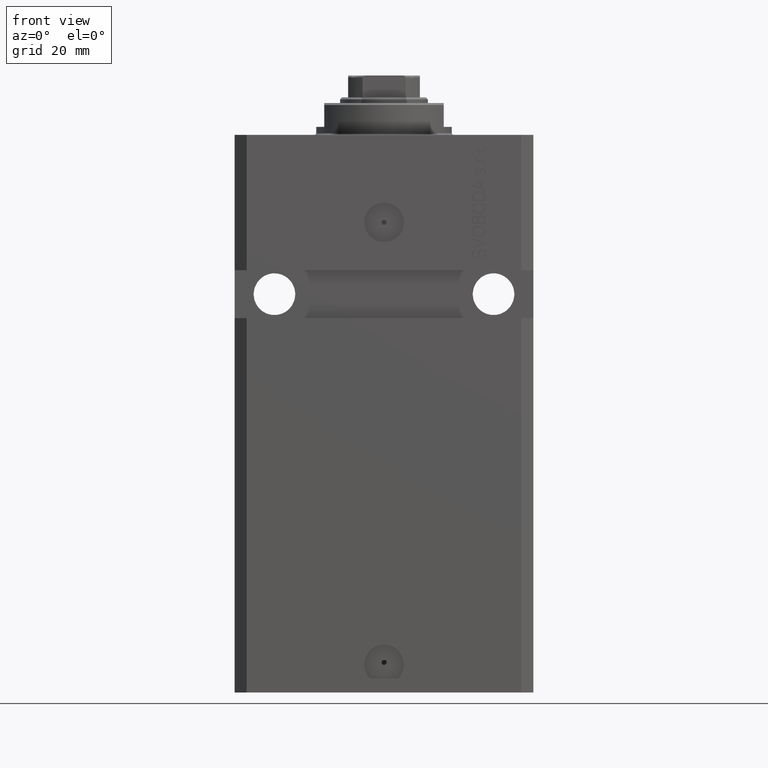
[diagram: clean part render]
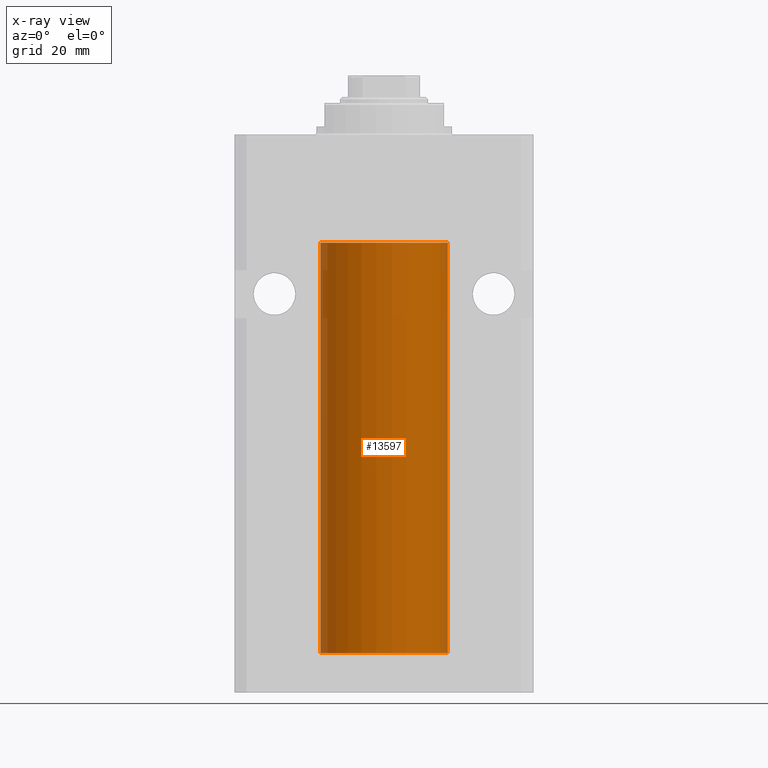
[diagram: x-ray — body ghosted, one internal face saturated and labeled with its STEP entity id]
A machine part, front view, then the same camera in x-ray: the body is ghosted and one INTERNAL B-rep face — a face not visible from any outside direction — is saturated and labeled: STEP entity #13597.
In plain terms, the highlighted cylindrical surface (partial cylindrical patch) has radius 16 mm, axis along (0, 0, 1).
Its self-contained STEP definition (entity closure, byte-faithful):
#216 = VECTOR ( 'NONE', #12793, 1000.000000000000000 ) ;
#425 = CARTESIAN_POINT ( 'NONE',  ( 16.00000000000000000, 0.000000000000000000, -130.0999999999999943 ) ) ;
#524 = CARTESIAN_POINT ( 'NONE',  ( -16.00000000000000000, 1.959434878635765131E-15, -130.0999999999999943 ) ) ;
#607 = DIRECTION ( 'NONE',  ( 1.000000000000000000, 0.000000000000000000, 0.000000000000000000 ) ) ;
#1254 = VERTEX_POINT ( 'NONE', #34045 ) ;
#1935 = CARTESIAN_POINT ( 'NONE',  ( 0.000000000000000000, 0.000000000000000000, -130.0999999999999943 ) ) ;
#2227 = CARTESIAN_POINT ( 'NONE',  ( 15.98778830858102040, -0.6250000000001159073, -128.1648119328233690 ) ) ;
#2923 = CARTESIAN_POINT ( 'NONE',  ( 16.00000000000000000, 2.199125140786256469E-15, -128.6250000000000284 ) ) ;
#3739 = CARTESIAN_POINT ( 'NONE',  ( -15.98778295664474491, -0.6251369050462284305, -127.8356432545786561 ) ) ;
#4026 = ORIENTED_EDGE ( 'NONE', *, *, #39373, .F. ) ;
#4138 = CIRCLE ( 'NONE', #40114, 16.00000000000000000 ) ;
#5053 = DIRECTION ( 'NONE',  ( 1.000000000000000000, 0.000000000000000000, 0.000000000000000000 ) ) ;
#5696 = EDGE_CURVE ( 'NONE', #25244, #1254, #19738, .T. ) ;
#6155 = DIRECTION ( 'NONE',  ( -0.000000000000000000, -0.000000000000000000, 1.000000000000000000 ) ) ;
#6204 = CARTESIAN_POINT ( 'NONE',  ( 16.00000000000000000, 0.000000000000000000, -130.0999999999999943 ) ) ;
#7364 = VERTEX_POINT ( 'NONE', #6204 ) ;
#7545 = DIRECTION ( 'NONE',  ( 0.000000000000000000, 0.000000000000000000, 1.000000000000000000 ) ) ;
#8274 = VECTOR ( 'NONE', #6155, 1000.000000000000000 ) ;
#8775 = ORIENTED_EDGE ( 'NONE', *, *, #12006, .F. ) ;
#10502 = EDGE_CURVE ( 'NONE', #17277, #13328, #16293, .T. ) ;
#10510 = ORIENTED_EDGE ( 'NONE', *, *, #46041, .T. ) ;
#10513 = DIRECTION ( 'NONE',  ( -0.000000000000000000, -0.000000000000000000, 1.000000000000000000 ) ) ;
#10705 = CARTESIAN_POINT ( 'NONE',  ( 15.99071289786271954, -0.5571474671814827806, -127.6731966548882440 ) ) ;
#12006 = EDGE_CURVE ( 'NONE', #25244, #7364, #4138, .T. ) ;
#12062 = DIRECTION ( 'NONE',  ( 0.000000000000000000, 0.000000000000000000, 1.000000000000000000 ) ) ;
#12793 = DIRECTION ( 'NONE',  ( -0.000000000000000000, -0.000000000000000000, 1.000000000000000000 ) ) ;
#13154 = VERTEX_POINT ( 'NONE', #20409 ) ;
#13328 = VERTEX_POINT ( 'NONE', #26369 ) ;
#13597 = ADVANCED_FACE ( 'NONE', ( #16305 ), #33816, .F. ) ;
#13689 = VECTOR ( 'NONE', #10513, 1000.000000000000000 ) ;
#14104 = AXIS2_PLACEMENT_3D ( 'NONE', #1935, #34757, #5053 ) ;
#14285 = CARTESIAN_POINT ( 'NONE',  ( -16.00000000000000000, -1.314639473218082033E-14, -127.3749999999999858 ) ) ;
#14554 = ORIENTED_EDGE ( 'NONE', *, *, #44456, .F. ) ;
#15035 = DIRECTION ( 'NONE',  ( -0.000000000000000000, -0.000000000000000000, 1.000000000000000000 ) ) ;
#15404 = CARTESIAN_POINT ( 'NONE',  ( 0.000000000000000000, 0.000000000000000000, -27.10000000000000142 ) ) ;
#16123 = VERTEX_POINT ( 'NONE', #25306 ) ;
#16293 = CIRCLE ( 'NONE', #42348, 16.00000000000000000 ) ;
#16305 = FACE_OUTER_BOUND ( 'NONE', #39926, .T. ) ;
#16499 = CARTESIAN_POINT ( 'NONE',  ( 15.98778830858101685, -0.6250000000001232348, -128.0000000000000000 ) ) ;
#17277 = VERTEX_POINT ( 'NONE', #46894 ) ;
#17877 = CARTESIAN_POINT ( 'NONE',  ( -16.00000000000000000, -0.1651602165840369285, -127.3749999999999858 ) ) ;
#19738 = LINE ( 'NONE', #45602, #216 ) ;
#20278 = CARTESIAN_POINT ( 'NONE',  ( -16.00000000000000000, -1.314639473218082033E-14, -127.3749999999999858 ) ) ;
#20409 = CARTESIAN_POINT ( 'NONE',  ( 16.00000000000013145, 3.665533114689029904E-13, -127.3749999999965752 ) ) ;
#21120 = CARTESIAN_POINT ( 'NONE',  ( 15.99707785788560521, -0.3267997233067349017, -128.5571521527664345 ) ) ;
#21475 = CARTESIAN_POINT ( 'NONE',  ( 15.98778830858102040, -0.6250000000001306732, -127.8350147931928689 ) ) ;
#24050 = B_SPLINE_CURVE_WITH_KNOTS ( 'NONE', 3,
 ( #32282, #28436, #28900, #36821, #39470, #3739, #28662, #43981, #17877, #14285 ),
 .UNSPECIFIED., .F., .F.,
 ( 4, 2, 2, 2, 4 ),
 ( 0.001954221322144799027, 0.002442665739568306450, 0.002931110156991814306, 0.003419554574415321728, 0.003907998991838829150 ),
 .UNSPECIFIED. ) ;
#24492 = CARTESIAN_POINT ( 'NONE',  ( 16.00000000000000000, -0.1650734421240379612, -128.6250000000000568 ) ) ;
#24841 = CARTESIAN_POINT ( 'NONE',  ( 15.98778830858101685, -0.6250000000001232348, -128.0000000000000000 ) ) ;
#25244 = VERTEX_POINT ( 'NONE', #524 ) ;
#25306 = CARTESIAN_POINT ( 'NONE',  ( 16.00000000000000000, 2.199125140786256469E-15, -128.6250000000000284 ) ) ;
#26369 = CARTESIAN_POINT ( 'NONE',  ( 16.00000000000000000, 0.000000000000000000, -27.10000000000000142 ) ) ;
#26558 = EDGE_CURVE ( 'NONE', #34281, #17277, #43336, .T. ) ;
#27852 = ORIENTED_EDGE ( 'NONE', *, *, #45351, .T. ) ;
#28436 = CARTESIAN_POINT ( 'NONE',  ( -16.00000000000000711, -0.1631344205875858155, -128.6250000000001705 ) ) ;
#28662 = CARTESIAN_POINT ( 'NONE',  ( -15.99069874693027948, -0.5575440858643410103, -127.6738242501145066 ) ) ;
#28900 = CARTESIAN_POINT ( 'NONE',  ( -15.99708815688950381, -0.3263115027448994510, -128.5574096919822580 ) ) ;
#28955 = CARTESIAN_POINT ( 'NONE',  ( -16.00000000000000000, 1.959434878635765131E-15, -130.0999999999999943 ) ) ;
#29746 = VECTOR ( 'NONE', #15035, 1000.000000000000000 ) ;
#31407 = ORIENTED_EDGE ( 'NONE', *, *, #5696, .T. ) ;
#31459 = ORIENTED_EDGE ( 'NONE', *, *, #10502, .T. ) ;
#31803 = CARTESIAN_POINT ( 'NONE',  ( 16.00000000000000000, 0.000000000000000000, -130.0999999999999943 ) ) ;
#32282 = CARTESIAN_POINT ( 'NONE',  ( -16.00000000000013145, 3.685127464164956467E-13, -128.6250000000034390 ) ) ;
#32311 = VERTEX_POINT ( 'NONE', #16499 ) ;
#33080 = ORIENTED_EDGE ( 'NONE', *, *, #35055, .T. ) ;
#33256 = LINE ( 'NONE', #425, #29746 ) ;
#33816 = CYLINDRICAL_SURFACE ( 'NONE', #14104, 16.00000000000000000 ) ;
#34045 = CARTESIAN_POINT ( 'NONE',  ( -16.00000000000013145, 3.685127464164956467E-13, -128.6250000000034390 ) ) ;
#34281 = VERTEX_POINT ( 'NONE', #20278 ) ;
#34757 = DIRECTION ( 'NONE',  ( -0.000000000000000000, -0.000000000000000000, 1.000000000000000000 ) ) ;
#34952 = ORIENTED_EDGE ( 'NONE', *, *, #26558, .T. ) ;
#35055 = EDGE_CURVE ( 'NONE', #1254, #34281, #24050, .T. ) ;
#36821 = CARTESIAN_POINT ( 'NONE',  ( -15.99071965633095793, -0.5569502390237165423, -128.3270950821868439 ) ) ;
#37421 = B_SPLINE_CURVE_WITH_KNOTS ( 'NONE', 3,
 ( #39592, #2227, #39361, #21120, #24492, #2923 ),
 .UNSPECIFIED., .F., .F.,
 ( 4, 2, 4 ),
 ( 0.002931623410139905066, 0.003419811200989341087, 0.003907998991838777109 ),
 .UNSPECIFIED. ) ;
#39242 = LINE ( 'NONE', #31803, #8274 ) ;
#39361 = CARTESIAN_POINT ( 'NONE',  ( 15.99070553365076996, -0.5573460204199366386, -128.3264689786301176 ) ) ;
#39373 = EDGE_CURVE ( 'NONE', #13154, #13328, #39242, .T. ) ;
#39470 = CARTESIAN_POINT ( 'NONE',  ( -15.98779367741636648, -0.6248626626677442619, -128.1653963198503732 ) ) ;
#39475 = CARTESIAN_POINT ( 'NONE',  ( 16.00000000000013145, 3.665533114689029904E-13, -127.3749999999965752 ) ) ;
#39592 = CARTESIAN_POINT ( 'NONE',  ( 15.98778830858101685, -0.6250000000001232348, -128.0000000000000000 ) ) ;
#39926 = EDGE_LOOP ( 'NONE', ( #8775, #31407, #33080, #34952, #31459, #4026, #27852, #10510, #14554 ) ) ;
#40114 = AXIS2_PLACEMENT_3D ( 'NONE', #40398, #7545, #607 ) ;
#40398 = CARTESIAN_POINT ( 'NONE',  ( 0.000000000000000000, 0.000000000000000000, -130.0999999999999943 ) ) ;
#42348 = AXIS2_PLACEMENT_3D ( 'NONE', #15404, #12062, #44875 ) ;
#43336 = LINE ( 'NONE', #28955, #13689 ) ;
#43981 = CARTESIAN_POINT ( 'NONE',  ( -15.99707459521409625, -0.3269651631532018987, -127.4429184892856028 ) ) ;
#44456 = EDGE_CURVE ( 'NONE', #7364, #16123, #33256, .T. ) ;
#44875 = DIRECTION ( 'NONE',  ( 1.000000000000000000, 0.000000000000000000, 0.000000000000000000 ) ) ;
#45351 = EDGE_CURVE ( 'NONE', #13154, #32311, #45457, .T. ) ;
#45457 = B_SPLINE_CURVE_WITH_KNOTS ( 'NONE', 3,
 ( #39475, #46869, #46400, #10705, #21475, #24841 ),
 .UNSPECIFIED., .F., .F.,
 ( 4, 2, 4 ),
 ( 0.001954221322144558768, 0.002442922366142232134, 0.002931623410139905066 ),
 .UNSPECIFIED. ) ;
#45602 = CARTESIAN_POINT ( 'NONE',  ( -16.00000000000000000, 1.959434878635765131E-15, -130.0999999999999943 ) ) ;
#46041 = EDGE_CURVE ( 'NONE', #32311, #16123, #37421, .T. ) ;
#46400 = CARTESIAN_POINT ( 'NONE',  ( 15.99708487730508821, -0.3264777333248704561, -127.4426616680992339 ) ) ;
#46869 = CARTESIAN_POINT ( 'NONE',  ( 16.00000000000000355, -0.1632201307032006554, -127.3749999999998010 ) ) ;
#46894 = CARTESIAN_POINT ( 'NONE',  ( -16.00000000000000000, 1.959434878635765131E-15, -27.10000000000000142 ) ) ;